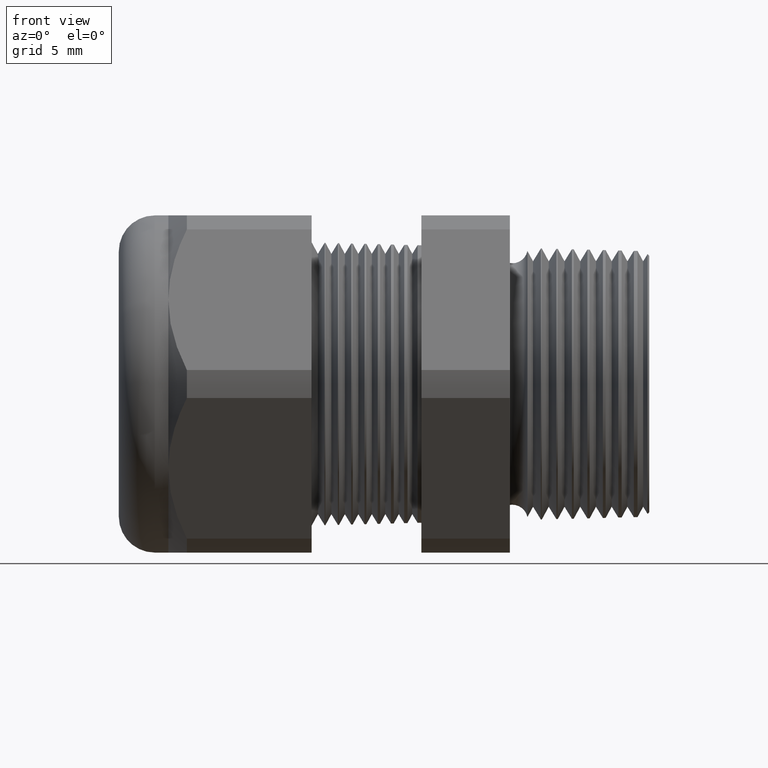
[diagram: clean part render]
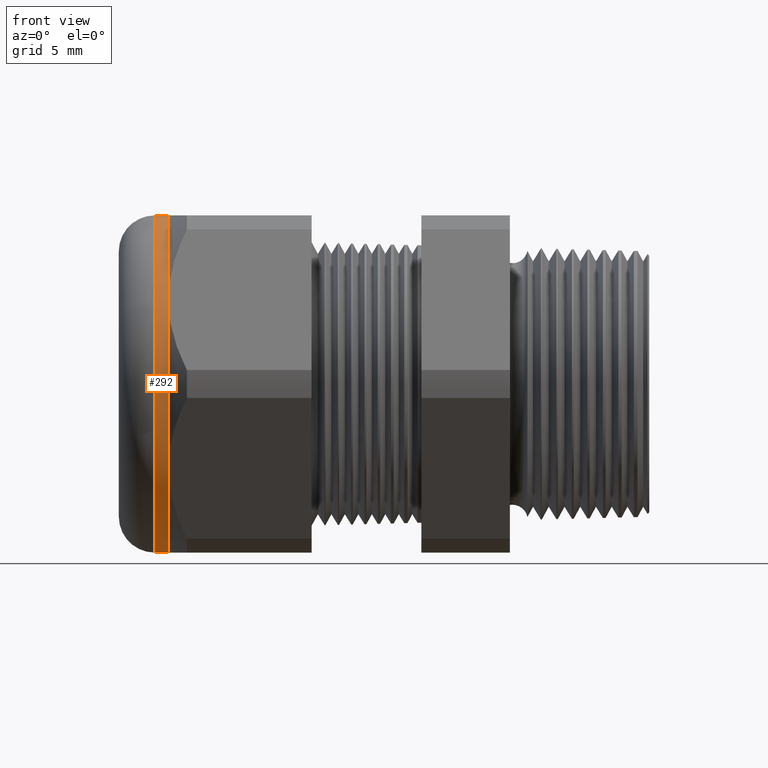
[diagram: same view with one face highlighted and labeled with its STEP entity id]
A machine part, front view. The second image highlights one B-rep face of the part: STEP entity #292.
In plain terms, the highlighted cylindrical surface (partial cylindrical patch) has radius 9.525 mm, axis along (1, 0, 0).
Its self-contained STEP definition (entity closure, byte-faithful):
#5 = VERTEX_POINT ( 'NONE', #1280 ) ;
#132 = VERTEX_POINT ( 'NONE', #1534 ) ;
#133 = VERTEX_POINT ( 'NONE', #1533 ) ;
#167 = EDGE_CURVE ( 'NONE', #132, #194, #1598, .T. ) ;
#184 = EDGE_CURVE ( 'NONE', #133, #185, #1625, .T. ) ;
#185 = VERTEX_POINT ( 'NONE', #1617 ) ;
#194 = VERTEX_POINT ( 'NONE', #1661 ) ;
#292 = ADVANCED_FACE ( 'NONE', ( #1808 ), #1865, .T. ) ;
#293 = EDGE_LOOP ( 'NONE', ( #294, #295, #297, #298, #350, #352 ) ) ;
#294 = ORIENTED_EDGE ( 'NONE', *, *, #184, .F. ) ;
#295 = ORIENTED_EDGE ( 'NONE', *, *, #296, .T. ) ;
#296 = EDGE_CURVE ( 'NONE', #133, #132, #1861, .T. ) ;
#297 = ORIENTED_EDGE ( 'NONE', *, *, #167, .T. ) ;
#298 = ORIENTED_EDGE ( 'NONE', *, *, #299, .F. ) ;
#299 = EDGE_CURVE ( 'NONE', #5, #194, #1857, .T. ) ;
#350 = ORIENTED_EDGE ( 'NONE', *, *, #351, .F. ) ;
#351 = EDGE_CURVE ( 'NONE', #4215, #5, #1950, .T. ) ;
#352 = ORIENTED_EDGE ( 'NONE', *, *, #353, .F. ) ;
#353 = EDGE_CURVE ( 'NONE', #185, #4215, #1945, .T. ) ;
#1280 = CARTESIAN_POINT ( 'NONE',  ( -1.069763779527559200, -0.3247595264191645600, -0.1875000000000001900 ) ) ;
#1533 = CARTESIAN_POINT ( 'NONE',  ( -1.100000000000000100, 4.592425496802576100E-017, 0.3750000000000001100 ) ) ;
#1534 = CARTESIAN_POINT ( 'NONE',  ( -1.100000000000000100, 0.0000000000000000000, -0.3750000000000001100 ) ) ;
#1591 = DIRECTION ( 'NONE',  ( 1.000000000000000000, 0.0000000000000000000, 0.0000000000000000000 ) ) ;
#1592 = VECTOR ( 'NONE', #1591, 39.37007874015748100 ) ;
#1593 = CARTESIAN_POINT ( 'NONE',  ( 0.0000000000000000000, 0.0000000000000000000, -0.3750000000000001100 ) ) ;
#1598 = LINE ( 'NONE', #1593, #1592 ) ;
#1617 = CARTESIAN_POINT ( 'NONE',  ( -1.069763779527559200, 0.0000000000000000000, 0.3749999999999999400 ) ) ;
#1618 = DIRECTION ( 'NONE',  ( 1.000000000000000000, 0.0000000000000000000, 0.0000000000000000000 ) ) ;
#1619 = VECTOR ( 'NONE', #1618, 39.37007874015748100 ) ;
#1620 = CARTESIAN_POINT ( 'NONE',  ( 0.0000000000000000000, 4.592425496802576100E-017, 0.3750000000000001100 ) ) ;
#1625 = LINE ( 'NONE', #1620, #1619 ) ;
#1661 = CARTESIAN_POINT ( 'NONE',  ( -1.069763779527559200, 0.0000000000000000000, -0.3750000000000001100 ) ) ;
#1802 = CARTESIAN_POINT ( 'NONE',  ( 0.0000000000000000000, 0.0000000000000000000, 0.0000000000000000000 ) ) ;
#1808 = FACE_OUTER_BOUND ( 'NONE', #293, .T. ) ;
#1853 = DIRECTION ( 'NONE',  ( 0.0000000000000000000, 0.0000000000000000000, -1.000000000000000000 ) ) ;
#1854 = DIRECTION ( 'NONE',  ( 1.000000000000000000, 0.0000000000000000000, 0.0000000000000000000 ) ) ;
#1855 = CARTESIAN_POINT ( 'NONE',  ( -1.069763779527559000, 0.0000000000000000000, 0.0000000000000000000 ) ) ;
#1856 = AXIS2_PLACEMENT_3D ( 'NONE', #1855, #1854, #1853 ) ;
#1857 = CIRCLE ( 'NONE', #1856, 0.3750000000000001100 ) ;
#1858 = DIRECTION ( 'NONE',  ( 0.0000000000000000000, 0.0000000000000000000, 1.000000000000000000 ) ) ;
#1859 = DIRECTION ( 'NONE',  ( 1.000000000000000000, 0.0000000000000000000, 0.0000000000000000000 ) ) ;
#1860 = AXIS2_PLACEMENT_3D ( 'NONE', #1866, #1859, #1858 ) ;
#1861 = CIRCLE ( 'NONE', #1860, 0.3750000000000001100 ) ;
#1862 = DIRECTION ( 'NONE',  ( 0.0000000000000000000, 0.0000000000000000000, -1.000000000000000000 ) ) ;
#1863 = DIRECTION ( 'NONE',  ( 1.000000000000000000, 0.0000000000000000000, 0.0000000000000000000 ) ) ;
#1864 = AXIS2_PLACEMENT_3D ( 'NONE', #1802, #1863, #1862 ) ;
#1865 = CYLINDRICAL_SURFACE ( 'NONE', #1864, 0.3750000000000001100 ) ;
#1866 = CARTESIAN_POINT ( 'NONE',  ( -1.100000000000000100, 0.0000000000000000000, 0.0000000000000000000 ) ) ;
#1941 = DIRECTION ( 'NONE',  ( 0.0000000000000000000, 0.0000000000000000000, -1.000000000000000000 ) ) ;
#1942 = DIRECTION ( 'NONE',  ( 1.000000000000000000, 0.0000000000000000000, 0.0000000000000000000 ) ) ;
#1943 = CARTESIAN_POINT ( 'NONE',  ( -1.069763779527559000, 0.0000000000000000000, 0.0000000000000000000 ) ) ;
#1944 = AXIS2_PLACEMENT_3D ( 'NONE', #1943, #1942, #1941 ) ;
#1945 = CIRCLE ( 'NONE', #1944, 0.3750000000000001100 ) ;
#1946 = DIRECTION ( 'NONE',  ( 0.0000000000000000000, 0.0000000000000000000, -1.000000000000000000 ) ) ;
#1947 = DIRECTION ( 'NONE',  ( 1.000000000000000000, 0.0000000000000000000, 0.0000000000000000000 ) ) ;
#1948 = CARTESIAN_POINT ( 'NONE',  ( -1.069763779527559000, 0.0000000000000000000, 0.0000000000000000000 ) ) ;
#1949 = AXIS2_PLACEMENT_3D ( 'NONE', #1948, #1947, #1946 ) ;
#1950 = CIRCLE ( 'NONE', #1949, 0.3750000000000001100 ) ;
#3650 = CARTESIAN_POINT ( 'NONE',  ( -1.069763779527559200, -0.3247595264191646700, 0.1875000000000000600 ) ) ;
#4215 = VERTEX_POINT ( 'NONE', #3650 ) ;